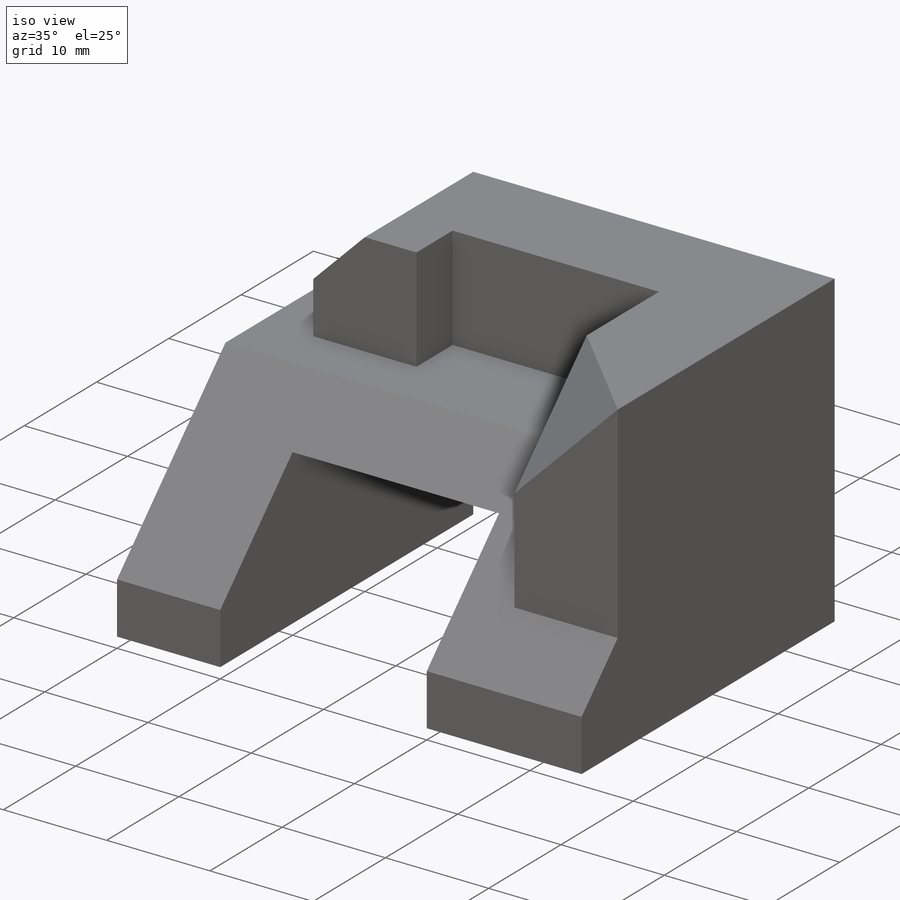
[diagram: iso view]
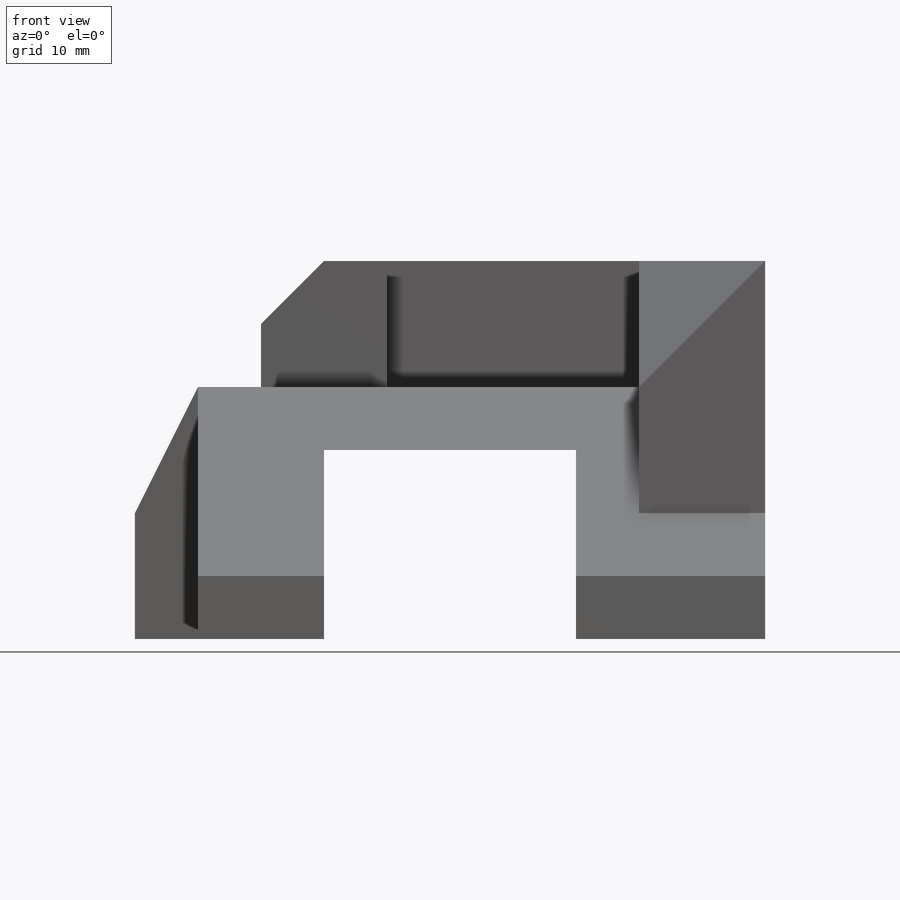
[diagram: front view]
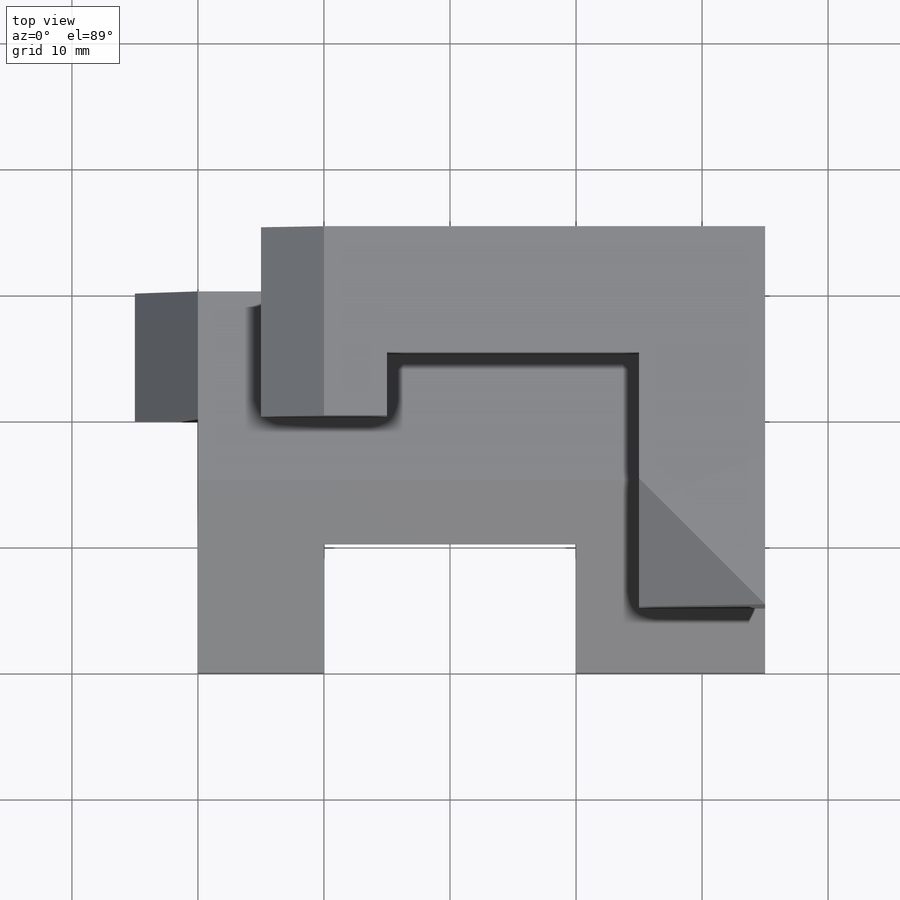
[diagram: top view]
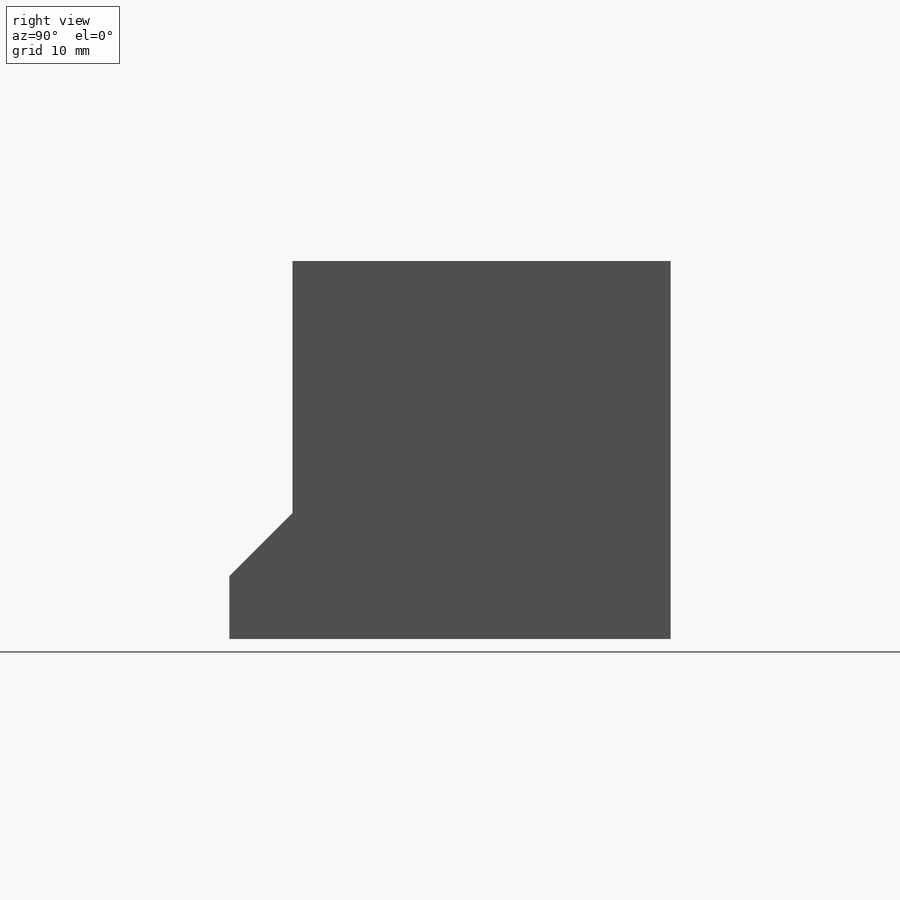
[diagram: right view]
SOLIDWORKS PART (.sldprt)
format: sldprt  version: not decoded by parser v0  size: 330,752 bytes
history: native  units: mm
features: sketch x16, cut_extrude x8, extrude x6, material x1, plane x1 (+13 scaffold rows collapsed)
feature tree (45):
  scaffold x13  (default folders/planes/origin — collapsed)
  material  "Material <not specified>"
  sketch  "Sketch1"  dims[D1=50.0mm D2=20.0mm]
  extrude  "Boss-Extrude1"  Depth=30mm
  sketch  "Sketch2"  dims[D1=15.0mm D2=15.0mm D3=15.0mm]
  cut_extrude  "Cut-Extrude1"  [1 undecoded]
  sketch  "Sketch3"  dims[D1=5.0mm]
  cut_extrude  "Cut-Extrude2"  Depth=20mm
  sketch  "Sketch4"  dims[D1=10.0mm]
  cut_extrude  "Cut-Extrude3"  [1 undecoded]
  sketch  "Sketch5"  dims[D1=5.0mm D2=5.0mm]
  cut_extrude  "Cut-Extrude4"  [1 undecoded]
  sketch  "Sketch7"  dims[D1=5.0mm D2=30.0mm]
  extrude  "Boss-Extrude2"  Depth=5mm
  sketch  "Sketch8"
  cut_extrude  "Cut-Extrude5"  [1 undecoded]
  sketch  "Sketch9"  dims[D1=10.0mm]
  extrude  "Boss-Extrude3"  Depth=10mm
  sketch  "Sketch10"  dims[D1=10.0mm D2=10.0mm]
  cut_extrude  "Cut-Extrude6"  Depth=5mm
  sketch  "Sketch11"  dims[D1=5.0mm D2=5.0mm]
  cut_extrude  "Cut-Extrude7"  [1 undecoded]
  sketch  "Sketch12"
  extrude  "Boss-Extrude4"  Depth=5mm
  sketch  "Sketch13"
  extrude  "Boss-Extrude5"  Depth=10mm
  sketch  "Sketch14"
  extrude  "Boss-Extrude6"  Depth=10mm
  sketch  "Sketch15"  dims[D1=10.0mm]
  sketch  "Sketch16"  dims[D1=10.0mm]
  plane  "Plane1"
  sketch  "Sketch17"
  cut_extrude  "Cut-Extrude8"  Depth=10mm
decode coverage: 20 of 30 modeling features carry decoded parameters
note: 5 parameter values undecoded
summary: no parameter record found for 5 features
note: suppression state not decoded; provenance and decode notes live in map.json
